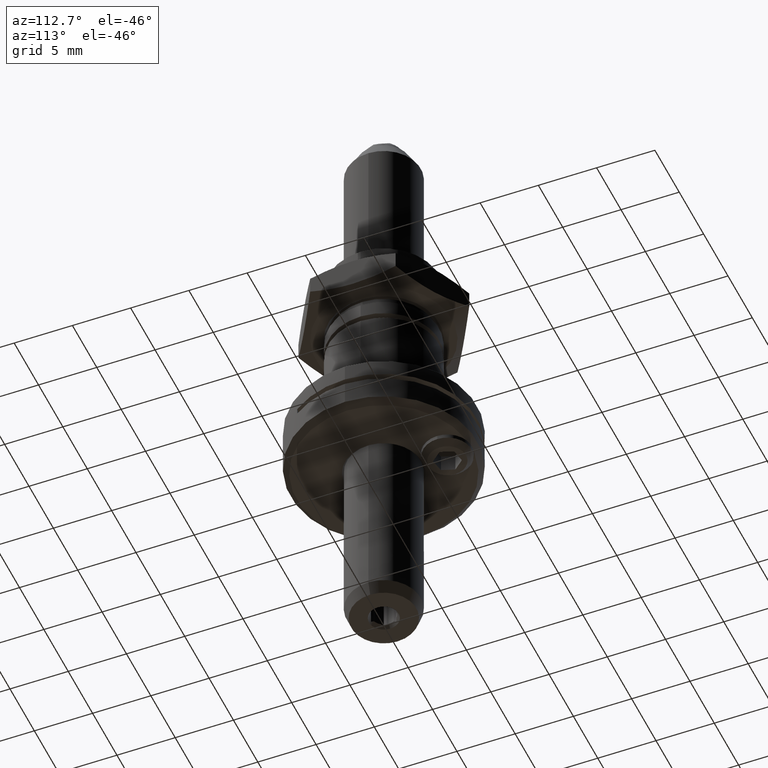
[diagram: clean part render]
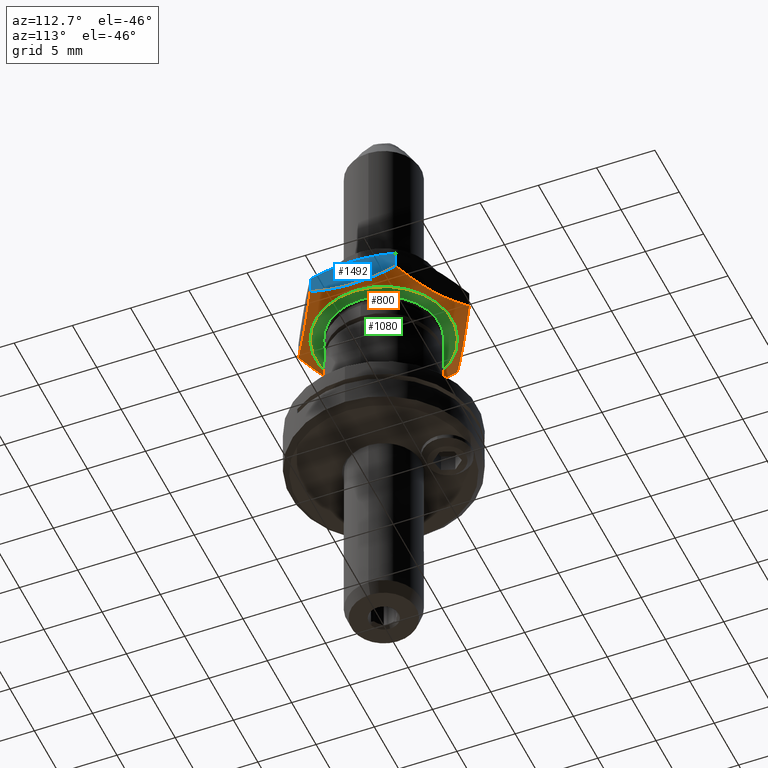
[diagram: same view with three faces highlighted in distinct colors, each labeled with its STEP entity id]
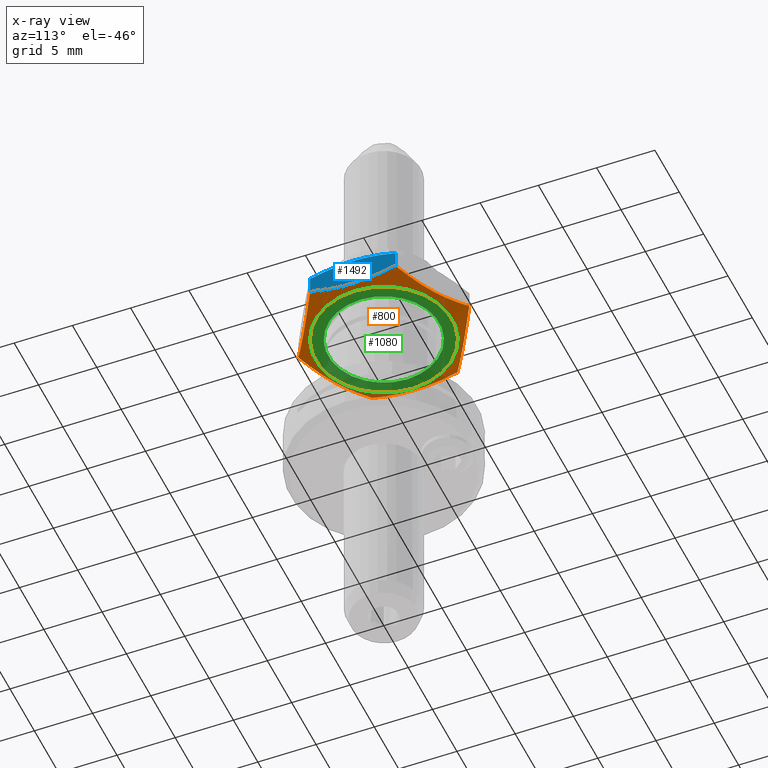
[diagram: x-ray of the same camera — body ghosted, the three highlighted faces saturated]
A machine part, auxiliary view with three faces highlighted in distinct colors.
The next image is the same camera in x-ray (body ghosted, the three faces saturated) — at least one of them is partly hidden behind the body in this view.
Their STEP definitions:

[orange] entity #800 — the highlighted conical surface has half-angle 60 deg.
#4 = ORIENTED_EDGE ( 'NONE', *, *, #2188, .T. ) ;
#19 = CARTESIAN_POINT ( 'NONE',  ( 2.884043047505326381E-08, -7.332348435359277161, -20.72954692971952539 ) ) ;
#38 = EDGE_CURVE ( 'NONE', #262, #1156, #1388, .T. ) ;
#41 = CIRCLE ( 'NONE', #80, 5.841999999972813384 ) ;
#46 = CARTESIAN_POINT ( 'NONE',  ( 0.5190640413278887477, -7.032666654720594934, -20.90256828299952829 ) ) ;
#67 = CARTESIAN_POINT ( 'NONE',  ( -4.512969956997174847, -4.726783999191115804, -21.19356655939890288 ) ) ;
#80 = AXIS2_PLACEMENT_3D ( 'NONE', #2382, #876, #2210 ) ;
#97 = CARTESIAN_POINT ( 'NONE',  ( 6.350000028860868007, -3.666174192690802691, -20.72954692971285695 ) ) ;
#147 = VERTEX_POINT ( 'NONE', #1875 ) ;
#187 = CARTESIAN_POINT ( 'NONE',  ( 2.911137226939211065, -5.651602557086551570, -21.29690243955272422 ) ) ;
#193 = CARTESIAN_POINT ( 'NONE',  ( -6.350000028870137037, 3.666174192685615285, -20.72954692970971990 ) ) ;
#217 = CARTESIAN_POINT ( 'NONE',  ( 3.720933523802295362, -5.184066447103868214, -21.29630661230018163 ) ) ;
#224 = CARTESIAN_POINT ( 'NONE',  ( -6.350000000000000533, -1.251304665882936984, -21.29670606329582938 ) ) ;
#228 = CARTESIAN_POINT ( 'NONE',  ( 2.103465653402619040, -6.117911957484732710, -21.23195161612440884 ) ) ;
#261 = CARTESIAN_POINT ( 'NONE',  ( 6.350000028860868007, -3.666174192690802691, -20.72954692971285695 ) ) ;
#262 = VERTEX_POINT ( 'NONE', #523 ) ;
#267 = CARTESIAN_POINT ( 'NONE',  ( -0.5184175274340987460, -7.033039919691537634, -20.90235278416060538 ) ) ;
#279 = CARTESIAN_POINT ( 'NONE',  ( -4.246534346606656740, -4.880610670571792653, -21.23195161612304460 ) ) ;
#400 = ORIENTED_EDGE ( 'NONE', *, *, #1055, .T. ) ;
#406 = DIRECTION ( 'NONE',  ( 0.000000000000000000, 0.000000000000000000, 1.000000000000000000 ) ) ;
#422 = EDGE_CURVE ( 'NONE', #1308, #147, #1293, .T. ) ;
#425 = CARTESIAN_POINT ( 'NONE',  ( 5.831582472605738587, -3.965482708347341845, -20.90235278414914788 ) ) ;
#470 = B_SPLINE_CURVE_WITH_KNOTS ( 'NONE', 3,
 ( #696, #2466, #2297, #2257, #1907, #2497, #1332, #2247, #532, #519, #1918, #2103 ),
 .UNSPECIFIED., .F., .F.,
 ( 4, 2, 2, 2, 2, 4 ),
 ( 3.434894651929980286E-11, 0.001851315121220257218, 0.003702630208091568006, 0.004628287751527224159, 0.005553945294962879010, 0.007405260381834193051 ),
 .UNSPECIFIED. ) ;
#519 = CARTESIAN_POINT ( 'NONE',  ( 5.307533277090981549, 4.268042652446737861, -21.04534410960124546 ) ) ;
#523 = CARTESIAN_POINT ( 'NONE',  ( 6.349999999999999645, 3.666174242678888806, -20.72954692971297064 ) ) ;
#532 = CARTESIAN_POINT ( 'NONE',  ( 4.512969957008881927, 4.726783999184358542, -21.19356655939710166 ) ) ;
#582 = CARTESIAN_POINT ( 'NONE',  ( -6.349999999999997868, 1.251304665882936096, -21.29670606329582228 ) ) ;
#594 = CARTESIAN_POINT ( 'NONE',  ( -2.911137226923859345, 5.651602557095414703, -21.29690243955229789 ) ) ;
#595 = CARTESIAN_POINT ( 'NONE',  ( -6.350000000000000533, 2.468361593792634423, -21.07532565048514428 ) ) ;
#642 = CARTESIAN_POINT ( 'NONE',  ( -3.438862773072150159, -5.346920070968768535, -21.29690243955216644 ) ) ;
#645 = EDGE_LOOP ( 'NONE', ( #2452, #1016, #703, #679, #4, #400 ) ) ;
#667 = CARTESIAN_POINT ( 'NONE',  ( 6.350000000000000533, 1.251304665880351275, -21.29670606329582938 ) ) ;
#675 = CARTESIAN_POINT ( 'NONE',  ( -1.837030042989060474, 6.271738628878708255, -21.19356655939695955 ) ) ;
#679 = ORIENTED_EDGE ( 'NONE', *, *, #422, .T. ) ;
#696 = CARTESIAN_POINT ( 'NONE',  ( -2.885572282814151965E-08, 7.332348435368105655, -20.72954692971443080 ) ) ;
#703 = ORIENTED_EDGE ( 'NONE', *, *, #1359, .T. ) ;
#800 = ADVANCED_FACE ( 'NONE', ( #2342, #1908 ), #1952, .T. ) ;
#813 = CARTESIAN_POINT ( 'NONE',  ( 2.884043047505326381E-08, -7.332348435359277161, -20.72954692971952539 ) ) ;
#840 = CARTESIAN_POINT ( 'NONE',  ( -1.042466722904187293, 6.730479975617934763, -21.04534410960032176 ) ) ;
#849 = CARTESIAN_POINT ( 'NONE',  ( -5.830935958677092579, -3.965855973338409779, -20.90256828299786562 ) ) ;
#876 = DIRECTION ( 'NONE',  ( -0.000000000000000000, -0.000000000000000000, -1.000000000000000000 ) ) ;
#890 = CARTESIAN_POINT ( 'NONE',  ( -2.885572282814151965E-08, 7.332348435368105655, -20.72954692971443080 ) ) ;
#967 = CARTESIAN_POINT ( 'NONE',  ( 0.000000000000000000, 0.000000000000000000, -20.72438422101186006 ) ) ;
#976 = CARTESIAN_POINT ( 'NONE',  ( -5.831582472620656432, 3.965482708338730955, -20.90235278414492370 ) ) ;
#985 = CARTESIAN_POINT ( 'NONE',  ( 5.309385437742786706, -4.266973306995504700, -21.04477601216241922 ) ) ;
#1011 = CARTESIAN_POINT ( 'NONE',  ( 1.042466722931613798, -6.730479975602101206, -21.04534410960681967 ) ) ;
#1014 = VERTEX_POINT ( 'NONE', #2015 ) ;
#1016 = ORIENTED_EDGE ( 'NONE', *, *, #38, .T. ) ;
#1024 = CARTESIAN_POINT ( 'NONE',  ( 1.837030043011391722, -6.271738628865818121, -21.19356655940044831 ) ) ;
#1049 = CARTESIAN_POINT ( 'NONE',  ( -1.040614562275293808, -6.731549321055936730, -21.04477601216659011 ) ) ;
#1055 = EDGE_CURVE ( 'NONE', #1682, #1337, #2438, .T. ) ;
#1143 = CARTESIAN_POINT ( 'NONE',  ( -6.349999999999999645, -3.666174242668599259, -20.72954692971594426 ) ) ;
#1156 = VERTEX_POINT ( 'NONE', #97 ) ;
#1180 = CARTESIAN_POINT ( 'NONE',  ( -6.349999999999999645, -2.468361761013272648, -21.07532561378029001 ) ) ;
#1200 = CARTESIAN_POINT ( 'NONE',  ( 4.254101456439538964, -4.876241797672461686, -21.24207832816677310 ) ) ;
#1201 = CARTESIAN_POINT ( 'NONE',  ( -5.307533277074814038, -4.268042652456069952, -21.04534410960500423 ) ) ;
#1204 = CARTESIAN_POINT ( 'NONE',  ( 6.350000000000000533, -2.468361593769492490, -21.07532565049005768 ) ) ;
#1211 = CARTESIAN_POINT ( 'NONE',  ( 6.350000028860868007, -3.666174192690802691, -20.72954692971285695 ) ) ;
#1293 = B_SPLINE_CURVE_WITH_KNOTS ( 'NONE', 3,
 ( #813, #267, #1049, #1823, #1579, #642, #1784, #279, #67, #1201, #849, #1811 ),
 .UNSPECIFIED., .F., .F.,
 ( 4, 2, 2, 2, 2, 4 ),
 ( 3.433074307495236860E-11, 0.001851315121190678231, 0.003702630208050613353, 0.004628287751480580914, 0.005553945294910550209, 0.007405260381770490535 ),
 .UNSPECIFIED. ) ;
#1308 = VERTEX_POINT ( 'NONE', #19 ) ;
#1332 = CARTESIAN_POINT ( 'NONE',  ( 3.710065976300434887, 5.190340828579823373, -21.28364580014396878 ) ) ;
#1337 = VERTEX_POINT ( 'NONE', #1944 ) ;
#1359 = EDGE_CURVE ( 'NONE', #1156, #1308, #1831, .T. ) ;
#1369 = CARTESIAN_POINT ( 'NONE',  ( -2.639934023700306387, 5.808181799481628715, -21.28364580014421392 ) ) ;
#1388 = B_SPLINE_CURVE_WITH_KNOTS ( 'NONE', 3,
 ( #1570, #2412, #667, #1443, #1204, #261 ),
 .UNSPECIFIED., .F., .F.,
 ( 4, 2, 4 ),
 ( -0.003709784776149026384, -6.890895623209991605E-11, 0.003709784638331113920 ),
 .UNSPECIFIED. ) ;
#1443 = CARTESIAN_POINT ( 'NONE',  ( 6.349999999999997868, -1.251304665880351275, -21.29670606329582228 ) ) ;
#1560 = CARTESIAN_POINT ( 'NONE',  ( -4.254101456434137063, 4.876241797675583634, -21.24207832816770392 ) ) ;
#1570 = CARTESIAN_POINT ( 'NONE',  ( 6.349999999999999645, 3.666174242678888806, -20.72954692971297064 ) ) ;
#1579 = CARTESIAN_POINT ( 'NONE',  ( -2.629066476211592729, -5.814456180949996167, -21.29630661230082112 ) ) ;
#1614 = CARTESIAN_POINT ( 'NONE',  ( -0.5190640412971474493, 7.032666654738342515, -20.90256828299067138 ) ) ;
#1682 = VERTEX_POINT ( 'NONE', #1686 ) ;
#1685 = EDGE_CURVE ( 'NONE', #1337, #262, #470, .T. ) ;
#1686 = CARTESIAN_POINT ( 'NONE',  ( -6.350000028870137037, 3.666174192685615285, -20.72954692970971990 ) ) ;
#1737 = B_SPLINE_CURVE_WITH_KNOTS ( 'NONE', 3,
 ( #1143, #1180, #224, #582, #595, #1929 ),
 .UNSPECIFIED., .F., .F.,
 ( 4, 2, 4 ),
 ( 3.439329007512279472E-11, 0.003709784738291050082, 0.007419569442188810732 ),
 .UNSPECIFIED. ) ;
#1751 = CARTESIAN_POINT ( 'NONE',  ( -5.309385437744865044, 4.266973306994305659, -21.04477601216212435 ) ) ;
#1783 = CARTESIAN_POINT ( 'NONE',  ( 2.884043047505326381E-08, -7.332348435359277161, -20.72954692971952539 ) ) ;
#1784 = CARTESIAN_POINT ( 'NONE',  ( -3.710065976293258849, -5.190340828583968502, -21.28364580014439511 ) ) ;
#1811 = CARTESIAN_POINT ( 'NONE',  ( -6.349999999999999645, -3.666174242668599259, -20.72954692971594426 ) ) ;
#1823 = CARTESIAN_POINT ( 'NONE',  ( -2.095898543575839490, -6.122280830380538497, -21.24207832816855657 ) ) ;
#1831 = B_SPLINE_CURVE_WITH_KNOTS ( 'NONE', 3,
 ( #1211, #425, #985, #1200, #217, #187, #1986, #228, #1024, #1011, #46, #1783 ),
 .UNSPECIFIED., .F., .F.,
 ( 4, 2, 2, 2, 2, 4 ),
 ( 3.435507163496417149E-11, 0.001851315121220267626, 0.003702630208085463514, 0.004628287751518060482, 0.005553945294950657016, 0.007405260381815850085 ),
 .UNSPECIFIED. ) ;
#1875 = CARTESIAN_POINT ( 'NONE',  ( -6.349999999999999645, -3.666174242668599259, -20.72954692971594426 ) ) ;
#1907 = CARTESIAN_POINT ( 'NONE',  ( 2.629066476211947556, 5.814456180949790109, -21.29630661230108046 ) ) ;
#1908 = FACE_BOUND ( 'NONE', #2333, .T. ) ;
#1912 = AXIS2_PLACEMENT_3D ( 'NONE', #967, #406, #1943 ) ;
#1918 = CARTESIAN_POINT ( 'NONE',  ( 5.830935958696182198, 3.965855973327388373, -20.90256828299240155 ) ) ;
#1929 = CARTESIAN_POINT ( 'NONE',  ( -6.350000028870137037, 3.666174192685615285, -20.72954692970971990 ) ) ;
#1943 = DIRECTION ( 'NONE',  ( 1.000000000000000000, 0.000000000000000000, 0.000000000000000000 ) ) ;
#1944 = CARTESIAN_POINT ( 'NONE',  ( -2.885572282814151965E-08, 7.332348435368105655, -20.72954692971443080 ) ) ;
#1952 = CONICAL_SURFACE ( 'NONE', #1912, 7.341290509145892429, 1.047197551209108513 ) ;
#1971 = EDGE_CURVE ( 'NONE', #1014, #1014, #41, .T. ) ;
#1986 = CARTESIAN_POINT ( 'NONE',  ( 2.639934023717421141, -5.808181799471745954, -21.28364580014526553 ) ) ;
#2015 = CARTESIAN_POINT ( 'NONE',  ( 5.841999999972813384, 0.000000000000000000, -21.59000000005137565 ) ) ;
#2103 = CARTESIAN_POINT ( 'NONE',  ( 6.349999999999999645, 3.666174242678888806, -20.72954692971297064 ) ) ;
#2142 = CARTESIAN_POINT ( 'NONE',  ( -2.103465653382008860, 6.117911957496629860, -21.23195161612182957 ) ) ;
#2188 = EDGE_CURVE ( 'NONE', #147, #1682, #1737, .T. ) ;
#2210 = DIRECTION ( 'NONE',  ( 1.000000000000000000, 0.000000000000000000, 0.000000000000000000 ) ) ;
#2247 = CARTESIAN_POINT ( 'NONE',  ( 4.246534346616866351, 4.880610670565900477, -21.23195161612178694 ) ) ;
#2257 = CARTESIAN_POINT ( 'NONE',  ( 2.095898543572862760, 6.122280830382255346, -21.24207832816833630 ) ) ;
#2297 = CARTESIAN_POINT ( 'NONE',  ( 1.040614562265963716, 6.731549321061321756, -21.04477601216449401 ) ) ;
#2333 = EDGE_LOOP ( 'NONE', ( #2379 ) ) ;
#2336 = CARTESIAN_POINT ( 'NONE',  ( -3.720933523793017450, 5.184066447109223041, -21.29630661230105915 ) ) ;
#2342 = FACE_OUTER_BOUND ( 'NONE', #645, .T. ) ;
#2379 = ORIENTED_EDGE ( 'NONE', *, *, #1971, .F. ) ;
#2382 = CARTESIAN_POINT ( 'NONE',  ( 0.000000000000000000, 0.000000000000000000, -21.59000000005137565 ) ) ;
#2412 = CARTESIAN_POINT ( 'NONE',  ( 6.349999999999999645, 2.468361761036791169, -21.07532561377496094 ) ) ;
#2438 = B_SPLINE_CURVE_WITH_KNOTS ( 'NONE', 3,
 ( #193, #976, #1751, #1560, #2336, #594, #1369, #2142, #675, #840, #1614, #890 ),
 .UNSPECIFIED., .F., .F.,
 ( 4, 2, 2, 2, 2, 4 ),
 ( 3.436601357621049819E-11, 0.001851315121244334963, 0.003702630208122656419, 0.004628287751561815412, 0.005553945295000976140, 0.007405260381879295861 ),
 .UNSPECIFIED. ) ;
#2452 = ORIENTED_EDGE ( 'NONE', *, *, #1685, .T. ) ;
#2466 = CARTESIAN_POINT ( 'NONE',  ( 0.5184175274063757000, 7.033039919707544385, -20.90235278415261178 ) ) ;
#2497 = CARTESIAN_POINT ( 'NONE',  ( 3.438862773077808743, 5.346920070965501814, -21.29690243955203499 ) ) ;

[blue] entity #1492 — the highlighted planar face has unit normal (-1, 0, 0).
#38 = EDGE_CURVE ( 'NONE', #262, #1156, #1388, .T. ) ;
#66 = CARTESIAN_POINT ( 'NONE',  ( 6.350000000006169820, -3.666174209357353053, -19.27545306067885633 ) ) ;
#97 = CARTESIAN_POINT ( 'NONE',  ( 6.350000028860868007, -3.666174192690802691, -20.72954692971285695 ) ) ;
#254 = AXIS2_PLACEMENT_3D ( 'NONE', #2235, #1639, #1246 ) ;
#261 = CARTESIAN_POINT ( 'NONE',  ( 6.350000028860868007, -3.666174192690802691, -20.72954692971285695 ) ) ;
#262 = VERTEX_POINT ( 'NONE', #523 ) ;
#455 = ORIENTED_EDGE ( 'NONE', *, *, #1683, .T. ) ;
#486 = CARTESIAN_POINT ( 'NONE',  ( 6.349999999989968558, -2.468361682194254225, -18.92967436819288807 ) ) ;
#491 = VERTEX_POINT ( 'NONE', #1225 ) ;
#494 = ORIENTED_EDGE ( 'NONE', *, *, #38, .F. ) ;
#523 = CARTESIAN_POINT ( 'NONE',  ( 6.349999999999999645, 3.666174242678888806, -20.72954692971297064 ) ) ;
#667 = CARTESIAN_POINT ( 'NONE',  ( 6.350000000000000533, 1.251304665880351275, -21.29670606329582938 ) ) ;
#683 = PLANE ( 'NONE',  #254 ) ;
#762 = VERTEX_POINT ( 'NONE', #1373 ) ;
#886 = CARTESIAN_POINT ( 'NONE',  ( 6.350000000000000533, 2.468361682193751516, -18.92967436818657134 ) ) ;
#964 = LINE ( 'NONE', #1738, #1465 ) ;
#1099 = DIRECTION ( 'NONE',  ( -0.000000000000000000, -0.000000000000000000, -1.000000000000000000 ) ) ;
#1156 = VERTEX_POINT ( 'NONE', #97 ) ;
#1204 = CARTESIAN_POINT ( 'NONE',  ( 6.350000000000000533, -2.468361593769492490, -21.07532565049005768 ) ) ;
#1225 = CARTESIAN_POINT ( 'NONE',  ( 6.350000000006223999, 3.666174209357553782, -19.27545306067893804 ) ) ;
#1246 = DIRECTION ( 'NONE',  ( 0.000000000000000000, 0.000000000000000000, 1.000000000000000000 ) ) ;
#1373 = CARTESIAN_POINT ( 'NONE',  ( 6.350000000006169820, -3.666174209357353053, -19.27545306067885633 ) ) ;
#1388 = B_SPLINE_CURVE_WITH_KNOTS ( 'NONE', 3,
 ( #1570, #2412, #667, #1443, #1204, #261 ),
 .UNSPECIFIED., .F., .F.,
 ( 4, 2, 4 ),
 ( -0.003709784776149026384, -6.890895623209991605E-11, 0.003709784638331113920 ),
 .UNSPECIFIED. ) ;
#1443 = CARTESIAN_POINT ( 'NONE',  ( 6.349999999999997868, -1.251304665880351275, -21.29670606329582228 ) ) ;
#1465 = VECTOR ( 'NONE', #2521, 1000.000000000000000 ) ;
#1492 = ADVANCED_FACE ( 'NONE', ( #2189 ), #683, .F. ) ;
#1554 = B_SPLINE_CURVE_WITH_KNOTS ( 'NONE', 3,
 ( #66, #486, #1849, #2443, #886, #1659 ),
 .UNSPECIFIED., .F., .F.,
 ( 4, 2, 4 ),
 ( -0.003709784738399692777, -3.955169525227120175E-16, 0.003709784738398901743 ),
 .UNSPECIFIED. ) ;
#1570 = CARTESIAN_POINT ( 'NONE',  ( 6.349999999999999645, 3.666174242678888806, -20.72954692971297064 ) ) ;
#1605 = EDGE_CURVE ( 'NONE', #762, #491, #1554, .T. ) ;
#1639 = DIRECTION ( 'NONE',  ( -1.000000000000000000, 0.000000000000000000, 0.000000000000000000 ) ) ;
#1659 = CARTESIAN_POINT ( 'NONE',  ( 6.350000000006223999, 3.666174209357553782, -19.27545306067893804 ) ) ;
#1683 = EDGE_CURVE ( 'NONE', #762, #1156, #2268, .T. ) ;
#1738 = CARTESIAN_POINT ( 'NONE',  ( 6.349999999999999645, 3.666174209353959768, -18.41499999999999559 ) ) ;
#1765 = ORIENTED_EDGE ( 'NONE', *, *, #1605, .F. ) ;
#1849 = CARTESIAN_POINT ( 'NONE',  ( 6.350000000000000533, -1.251304677060020909, -18.70829393671202112 ) ) ;
#1894 = ORIENTED_EDGE ( 'NONE', *, *, #2277, .F. ) ;
#2038 = VECTOR ( 'NONE', #1099, 1000.000000000000000 ) ;
#2082 = CARTESIAN_POINT ( 'NONE',  ( 6.349999999999859313, -3.666174209353713742, -18.41499999999999559 ) ) ;
#2189 = FACE_OUTER_BOUND ( 'NONE', #2301, .T. ) ;
#2235 = CARTESIAN_POINT ( 'NONE',  ( 6.349999999999999645, -3.666174209353959768, -18.41499999999999559 ) ) ;
#2268 = LINE ( 'NONE', #2082, #2038 ) ;
#2277 = EDGE_CURVE ( 'NONE', #491, #262, #964, .T. ) ;
#2301 = EDGE_LOOP ( 'NONE', ( #1765, #455, #494, #1894 ) ) ;
#2412 = CARTESIAN_POINT ( 'NONE',  ( 6.349999999999999645, 2.468361761036791169, -21.07532561377496094 ) ) ;
#2443 = CARTESIAN_POINT ( 'NONE',  ( 6.349999999999997868, 1.251304677060021575, -18.70829393671201757 ) ) ;
#2521 = DIRECTION ( 'NONE',  ( -0.000000000000000000, -0.000000000000000000, -1.000000000000000000 ) ) ;

[green] entity #1080 — the highlighted planar face has unit normal (0, 0, -1).
#41 = CIRCLE ( 'NONE', #80, 5.841999999972813384 ) ;
#64 = EDGE_LOOP ( 'NONE', ( #1776 ) ) ;
#69 = FACE_OUTER_BOUND ( 'NONE', #1444, .T. ) ;
#80 = AXIS2_PLACEMENT_3D ( 'NONE', #2382, #876, #2210 ) ;
#269 = FACE_BOUND ( 'NONE', #64, .T. ) ;
#332 = CARTESIAN_POINT ( 'NONE',  ( 0.000000000000000000, 0.000000000000000000, -21.58999999994648533 ) ) ;
#816 = VERTEX_POINT ( 'NONE', #1250 ) ;
#851 = DIRECTION ( 'NONE',  ( -1.000000000000000000, 0.000000000000000000, -0.000000000000000000 ) ) ;
#876 = DIRECTION ( 'NONE',  ( -0.000000000000000000, -0.000000000000000000, -1.000000000000000000 ) ) ;
#1014 = VERTEX_POINT ( 'NONE', #2015 ) ;
#1057 = ORIENTED_EDGE ( 'NONE', *, *, #1971, .T. ) ;
#1075 = CIRCLE ( 'NONE', #1841, 4.762499999969804776 ) ;
#1080 = ADVANCED_FACE ( 'NONE', ( #269, #69 ), #1824, .T. ) ;
#1250 = CARTESIAN_POINT ( 'NONE',  ( -4.762499999969804776, 0.000000000000000000, -21.58999999994648533 ) ) ;
#1257 = EDGE_CURVE ( 'NONE', #816, #816, #1075, .T. ) ;
#1444 = EDGE_LOOP ( 'NONE', ( #1057 ) ) ;
#1473 = DIRECTION ( 'NONE',  ( 0.000000000000000000, 0.000000000000000000, -1.000000000000000000 ) ) ;
#1511 = DIRECTION ( 'NONE',  ( -0.000000000000000000, -0.000000000000000000, 1.000000000000000000 ) ) ;
#1776 = ORIENTED_EDGE ( 'NONE', *, *, #1257, .T. ) ;
#1824 = PLANE ( 'NONE',  #2199 ) ;
#1841 = AXIS2_PLACEMENT_3D ( 'NONE', #332, #1511, #1909 ) ;
#1909 = DIRECTION ( 'NONE',  ( -1.000000000000000000, 0.000000000000000000, 0.000000000000000000 ) ) ;
#1971 = EDGE_CURVE ( 'NONE', #1014, #1014, #41, .T. ) ;
#2015 = CARTESIAN_POINT ( 'NONE',  ( 5.841999999972813384, 0.000000000000000000, -21.59000000005137565 ) ) ;
#2035 = CARTESIAN_POINT ( 'NONE',  ( 6.349999999999999645, 3.666174209353959768, -21.58999999999999631 ) ) ;
#2199 = AXIS2_PLACEMENT_3D ( 'NONE', #2035, #1473, #851 ) ;
#2210 = DIRECTION ( 'NONE',  ( 1.000000000000000000, 0.000000000000000000, 0.000000000000000000 ) ) ;
#2382 = CARTESIAN_POINT ( 'NONE',  ( 0.000000000000000000, 0.000000000000000000, -21.59000000005137565 ) ) ;